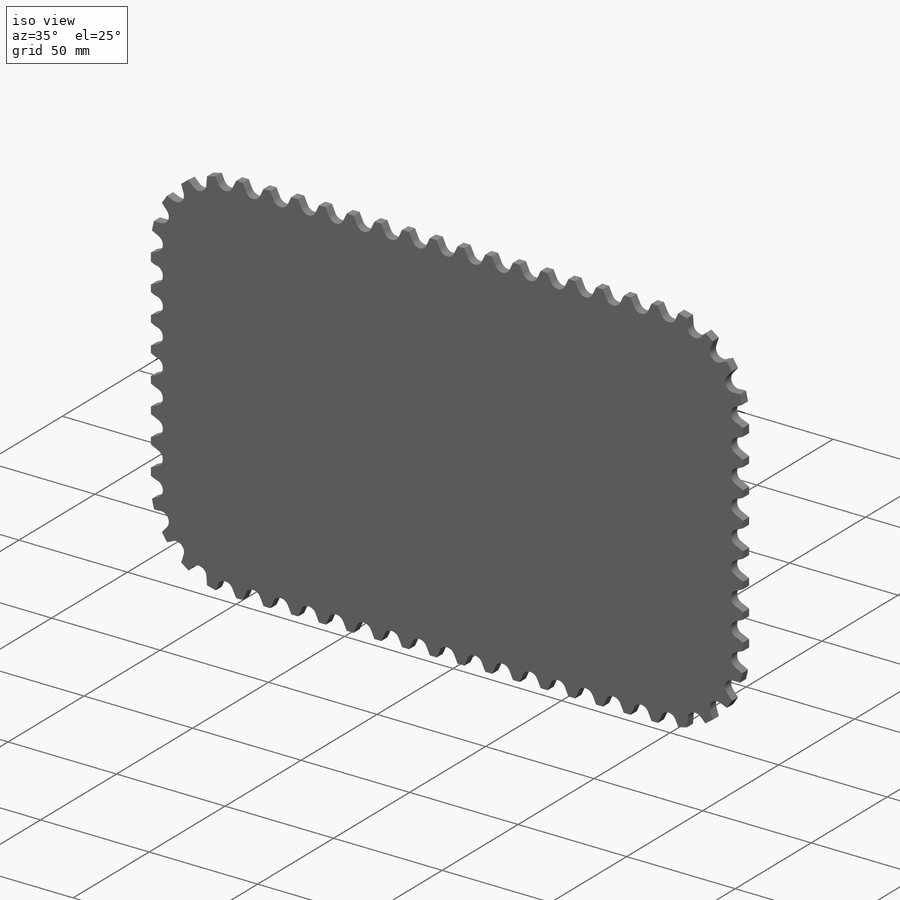
[diagram: iso view]
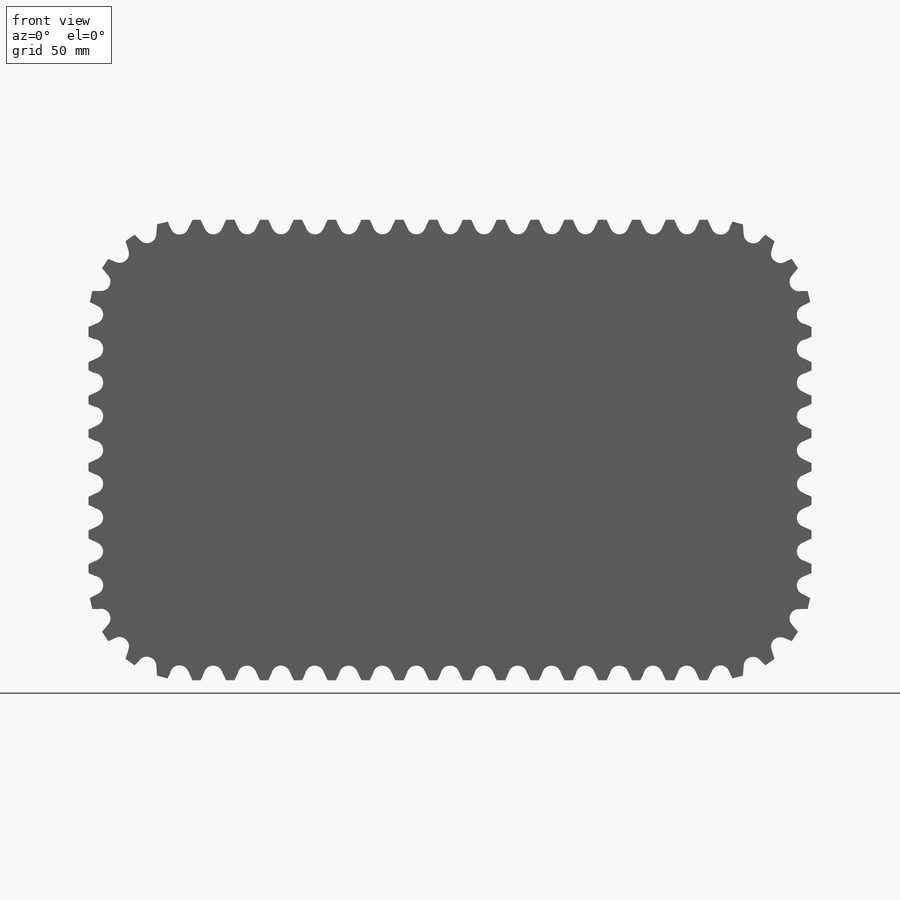
[diagram: front view]
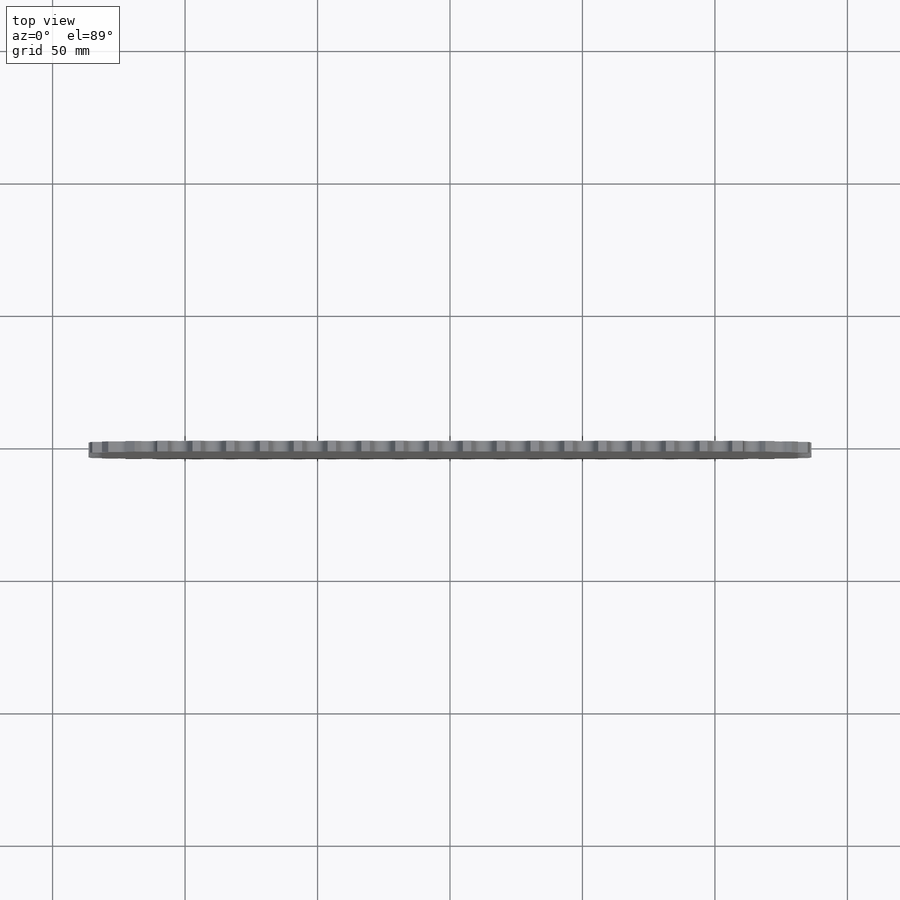
[diagram: top view]
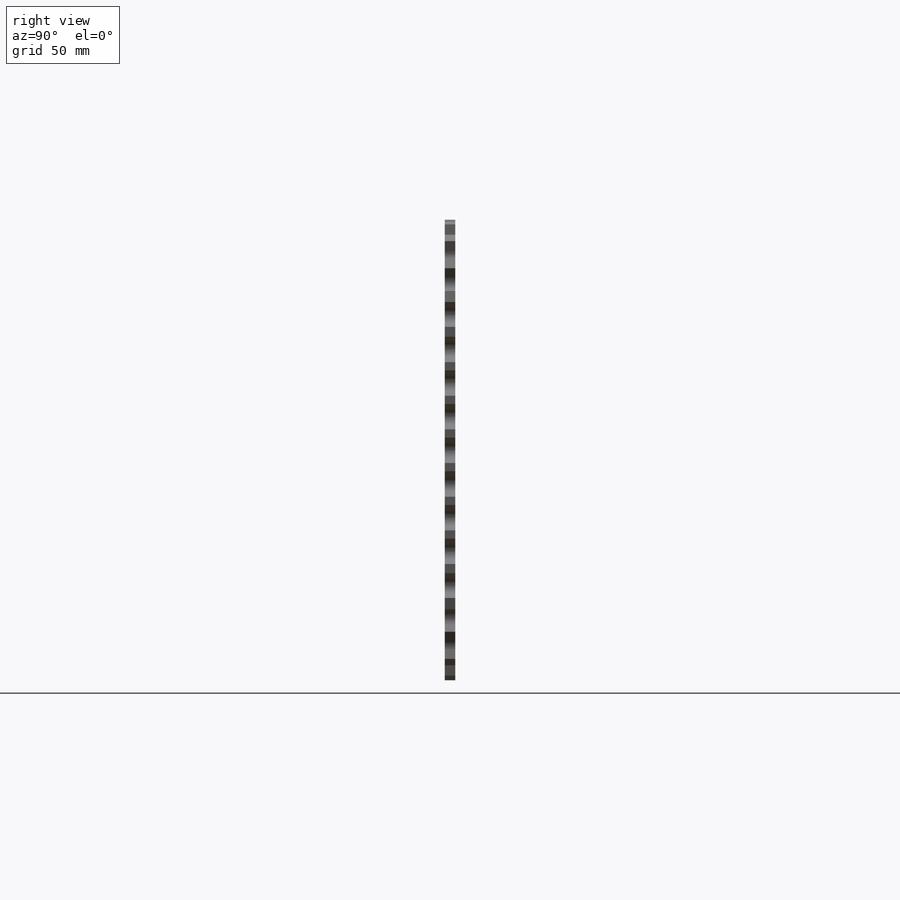
[diagram: right view]
SOLIDWORKS PART (.sldprt)
format: sldprt  version: not decoded by parser v0  size: 728,576 bytes
history: native  units: mm
features: sketch x7, cut_extrude x5, plane x3, mirror x3, material x1, extrude x1, pattern_linear x1 (+10 scaffold rows collapsed)
feature tree (31):
  scaffold x10  (default folders/planes/origin — collapsed)
  material  "Material <nicht festgelegt>"
  plane  "Ebene vorne"
  plane  "Ebene oben"
  plane  "Ebene rechts"
  sketch  "Skizze1"  dims[D3=40.0mm D1=285.0mm D2=180.0mm]
  extrude  "Aufsatz-Linear austragen1"  Depth=4mm
  sketch  "Skizze2"  dims[c1.D1=35.0mm c1.D2=762.0mm c2.D2=25.4mm c2.D4=25.4mm]
  sketch  "Skizze3"  dims[c1.D1=3.5mm c1.D2=~29.672976mm c2.D2=60.0deg c2.D3=20.0mm]
  cut_extrude  "Schnitt-Linear austragen1"  Depth=64
  sketch  "Skizze5"  dims[c1.D1=~16.898325mm c2.D1=50.0deg c2.D2=8.5mm c2.D3=~11.839244mm c3.D3=50.0deg c3.D4=~10.237424mm c4.D4=50.0deg c4.D5=~8.863048mm c5.D5=50.0deg c5.D6=~18.282733mm c6.D6=~154.466899deg c7.D6=~18.282733mm c8.D6=50.0deg]
  cut_extrude  "Schnitt-Linear austragen2"  [1 undecoded]
  mirror  "Spiegeln1"
  mirror  "Spiegeln2"
  sketch  "Skizze6"  dims[c1.D1=~8.622118mm c2.D1=50.0deg c2.D2=8.5mm c3.D2=15.0]
  cut_extrude  "Schnitt-Linear austragen3"  [1 undecoded]
  sketch  "Skizze7"  dims[c1.D1=~8.885922mm c2.D1=50.0deg]
  cut_extrude  "Schnitt-Linear austragen4"  [1 undecoded]
  mirror  "Spiegeln3"
  pattern_linear  "Lineares Muster1"  Count1=7 Count2=1 Spacing1=12.7mm Spacing2=0.5mm
  sketch  "Skizze10"  dims[D1=2.0mm]
  cut_extrude  "Schnitt-Linear austragen5"  [1 undecoded]
decode coverage: 10 of 17 modeling features carry decoded parameters
note: ~ marks probable driven/reference dimensions
note: 4 parameter values undecoded
summary: no parameter record found for 4 features
note: suppression state not decoded; provenance and decode notes live in map.json
